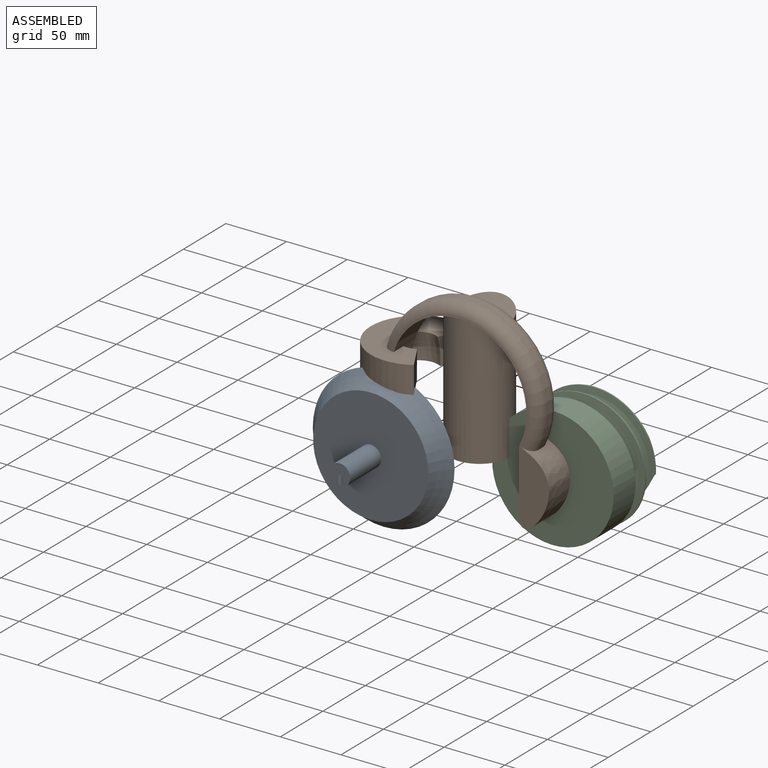
[diagram: assembled view]
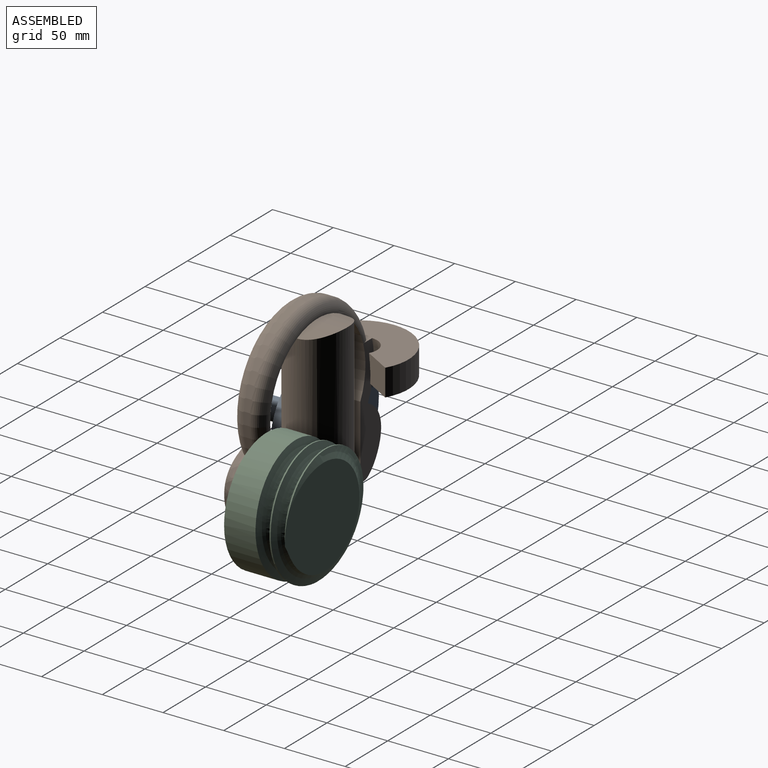
[diagram: assembled view, second angle]
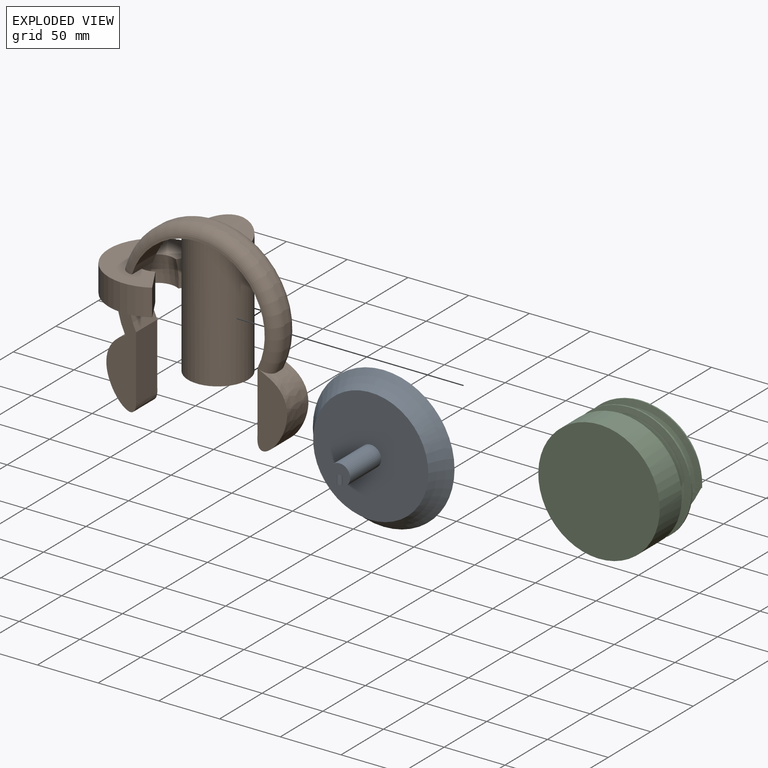
[diagram: exploded view]
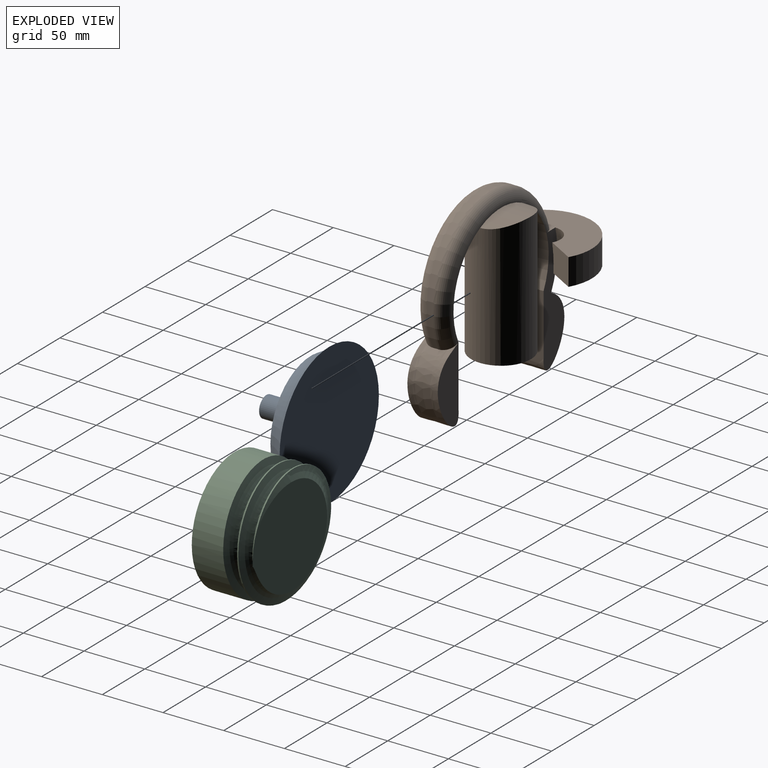
[diagram: exploded view, second angle]
ASSEMBLY  parts=3 mates=2
PART A: 7 faces, bbox 65.6x201x201 mm
  f0: plane 17.26x16.89mm, normal (-1,0,0), area 191.3mm2, adj f1,f5,f6
  f1: cylinder r=8.63mm len=36.52mm, axis (1,0,0), area 1969.7mm2, adj f0,f4,f6
  f2: torus R=92.84mm, axis (1,0,0), area 6210.1mm2, adj f3,f4
  f3: plane 116.7x116.7mm, normal (1,0,0), area 10695.3mm2, adj f2
  f4: plane 94.88x94.88mm, normal (-1,0,0), area 6836.8mm2, adj f1,f2
  f5: plane 5x2.5mm, normal (0,1,0), area 9.8mm2, adj f0,f6
  f6: cylinder r=2.5mm len=8.63mm, axis (0,-1,0), area 66.3mm2, adj f0,f1,f5
PART B: 23 faces, bbox 173.5x79.4x166.5 mm
  f0: plane 111.86x36.27mm, normal (0,1,0), area 1563.5mm2, adj f1,f2,f6,f7,f15,f16
  f1: cylinder r=66mm len=25mm, axis (0,1,0), area 638.7mm2, adj f0,f3,f6,f14
  f2: cylinder r=56mm len=112mm, axis (0,1,0), area 4494.1mm2, adj f0,f3,f7,f8,f9,f10,f13,f14
  f3: plane 89.74x36.27mm, normal (0,-1,0), area 1340mm2, adj f1,f2,f6,f7,f14
  f4: extruded ~60.53x25mm, area 2123.7mm2, adj f5,f8,f9,f10,f21,f22
  f5: cylinder r=66mm len=129.82mm, axis (0,1,0), area 1105.7mm2, adj f4,f15,f21,f22
  f6: extruded ~56.07x25mm, area 2081.6mm2, adj f0,f1,f3,f7
  f7: plane 50x25mm, normal (1,0,0), area 1250mm2, adj f0,f2,f3,f6
  f8: plane 50x25mm, normal (-1,0,0), area 1250mm2, adj f2,f4,f9,f10
  f9: plane 79.55x43.55mm, normal (0,-1,0), area 1107.4mm2, adj f2,f4,f8
  f10: plane 79.55x43.55mm, normal (0,1,0), area 1107.4mm2, adj f2,f4,f8
  f11: cylinder r=56mm len=49.22mm, axis (0,1,0), area 976.1mm2, adj f13,f21
  f12: plane 49.22x49.22mm, normal (0,0,-1), area 1902.3mm2, adj f13
  f13: cylinder r=24.61mm len=106.22mm, axis (0,0,-1), area 15988.5mm2, adj f2,f11,f12
  f14: plane 79.4x59.55mm, normal (0,0,-1), area 2635.1mm2, adj f1,f2,f3,f16,f17,f18,f19,f20
  f15: plane 79.4x59.55mm, normal (0,0,1), area 2789mm2, adj f0,f2,f5,f16,f17,f18,f19,f20
  f16: revolved ~24x22.12mm, area 720.9mm2, adj f0,f14,f15,f20
  f17: cylinder r=39.7mm len=79.4mm, axis (0,0,-1), area 3678.5mm2, adj f14,f15,f19,f20
  f18: revolved ~22.12x14mm, area 301.5mm2, adj f2,f14,f15,f19
  f19: plane 22.42x22.12mm, normal (0.87,0.5,0), area 536.8mm2, adj f14,f15,f17,f18
  f20: plane 22.42x22.12mm, normal (0.87,-0.5,0), area 536.8mm2, adj f14,f15,f16,f17
  f21: torus R=56mm, axis (0,-1,0), area 3267.3mm2, adj f2,f4,f5,f11,f15
  f22: torus R=56mm, axis (0,-1,0), area 3267.4mm2, adj f2,f4,f5,f15
PART C: 7 faces, bbox 122.5x76.4x122.5 mm
  f0: cylinder r=50mm len=100mm, axis (0,1,0), area 7392.7mm2, adj f1,f3,f5,f6
  f1: cylinder r=50mm len=100mm, axis (0,1,0), area 333mm2, adj f0,f2,f6
  f2: cylinder r=50mm len=25.78mm, axis (0,1,0), area 14.1mm2, adj f1,f4,f6
  f3: plane 100x100mm, normal (0,-1,0), area 7854mm2, adj f0
  f4: plane 98.16x91.65mm, normal (0,1,0), area 5515.8mm2, adj f2,f6
  f5: plane 14.29x13.07mm, normal (-1,0,0), area 103.8mm2, adj f0,f6
  f6: bspline ~112.17x112.17mm, area 17860.1mm2, adj f0,f1,f2,f4,f5
PLACE A rot(axis=(-0.58,-0.58,0.58),120deg) t=(-36.5,-129.88,-35.55)mm
PLACE B t=(-71.86,-62.86,-32.05)mm
PLACE C t=(-11.61,-12.86,-37.85)mm
MATE parallel A.f1 <-> B.f3  axis (0,1,0) through (-129.34,-93.68,-35.55)mm
MATE parallel C.f0 <-> B.f10  axis (0,-1,0) through (-11.61,-62.86,-37.85)mm
